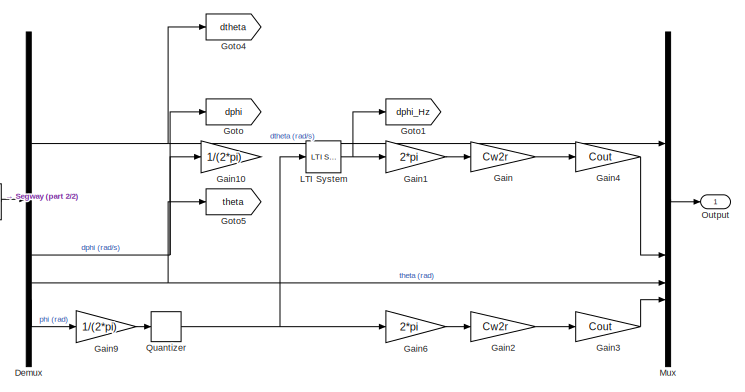
[diagram: root canvas - part 1/2, right side, full height]
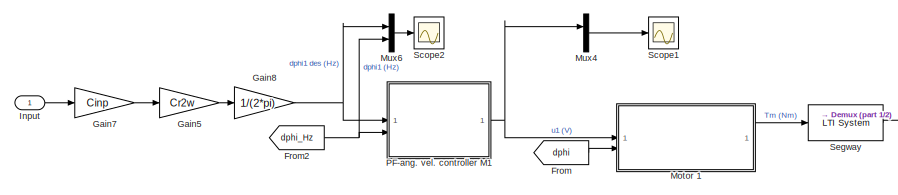
[diagram: root canvas - part 2/2, middle left region]
MODEL slx_a79e6e73ce5a
KIND model
CONFIG AbsTol = auto
CONFIG EnableMultiTasking = off
CONFIG FixedStep = auto
CONFIG MaxStep = auto
CONFIG MinStep = auto
CONFIG RelTol = 1e-3
CONFIG SampleTimeConstraint = Unconstrained
CONFIG SolverName = VariableStepAuto
CONFIG StartTime = 0.0
CONFIG StopTime = 10.0
BLOCK [Demux] Demux
BLOCK [From] From
  GotoTag = dphi
BLOCK [From] From2
  GotoTag = dphi_Hz
BLOCK [Gain] Gain
  Gain = Cw2r
  Multiplication = Matrix(K*u)
BLOCK [Gain] Gain1
  Gain = 2*pi
BLOCK [Gain] Gain10
  Gain = 1/(2*pi)
BLOCK [Gain] Gain2
  Gain = Cw2r
  Multiplication = Matrix(K*u)
BLOCK [Gain] Gain3
  Gain = Cout
  Multiplication = Matrix(K*u)
BLOCK [Gain] Gain4
  Gain = Cout
  Multiplication = Matrix(K*u)
BLOCK [Gain] Gain5
  Gain = Cr2w
  Multiplication = Matrix(K*u)
BLOCK [Gain] Gain6
  Gain = 2*pi
BLOCK [Gain] Gain7
  Gain = Cinp
  Multiplication = Matrix(K*u)
BLOCK [Gain] Gain8
  Gain = 1/(2*pi)
BLOCK [Gain] Gain9
  Gain = 1/(2*pi)
BLOCK [Goto] Goto
  GotoTag = dphi
BLOCK [Goto] Goto1
  GotoTag = dphi_Hz
BLOCK [Goto] Goto4
  GotoTag = dtheta
BLOCK [Goto] Goto5
  GotoTag = theta
BLOCK [Inport] Input
BLOCK [Reference] LTI System  REF=cstblocks/LTI System
  SourceBlock = cstblocks/LTI System
  SourceType = LTI Block
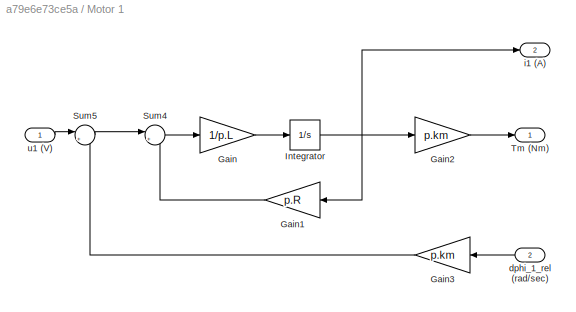
BLOCK [SubSystem] Motor 1
BLOCK [Gain] Motor 1/Gain
  Gain = 1/p.L
BLOCK [Gain] Motor 1/Gain1
  Gain = p.R
  NameLocation = top
BLOCK [Gain] Motor 1/Gain2
  Gain = p.km
BLOCK [Gain] Motor 1/Gain3
  Gain = p.km
  NameLocation = top
BLOCK [Integrator] Motor 1/Integrator
BLOCK [Sum] Motor 1/Sum4
  Inputs = |+-
BLOCK [Sum] Motor 1/Sum5
  Inputs = |+-
BLOCK [Outport] Motor 1/Tm (Nm)
BLOCK [Inport] Motor 1/dphi_1_rel (rad//sec)
  Port = 2
BLOCK [Outport] Motor 1/i1 (A)
  Port = 2
BLOCK [Inport] Motor 1/u1 (V)
BLOCK [Mux] Mux
  DisplayOption = bar
BLOCK [Mux] Mux4
  DisplayOption = bar
  Inputs = 2
BLOCK [Mux] Mux6
  DisplayOption = bar
  Inputs = 2
BLOCK [Outport] Output
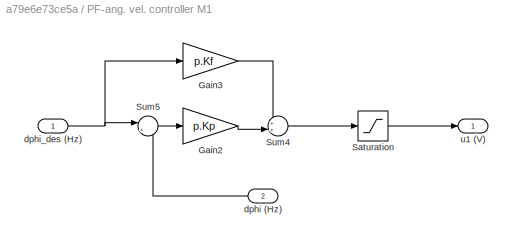
BLOCK [SubSystem] PF-ang. vel. controller M1
BLOCK [Gain] PF-ang. vel. controller M1/Gain2
  Gain = p.Kp
BLOCK [Gain] PF-ang. vel. controller M1/Gain3
  Gain = p.Kf
BLOCK [Saturate] PF-ang. vel. controller M1/Saturation
  LowerLimit = p.u_min
  UpperLimit = p.u_max
BLOCK [Sum] PF-ang. vel. controller M1/Sum4
  Inputs = ++|
BLOCK [Sum] PF-ang. vel. controller M1/Sum5
  Inputs = |+-
BLOCK [Inport] PF-ang. vel. controller M1/dphi (Hz)
  Port = 2
BLOCK [Inport] PF-ang. vel. controller M1/dphi_des (Hz)
BLOCK [Outport] PF-ang. vel. controller M1/u1 (V)
BLOCK [Quantizer] Quantizer
  QuantizationInterval = 1/p.CPR
BLOCK [Scope] Scope1
  Floating = off
  NumInputPorts = 1
  ScopeSpecificationString = Simulink.scopes.TimeScopeBlockCfg('CurrentConfiguration', extmgr.ConfigurationSet(extmgr.Configuration('Core','General UI',true),extmgr.Configuration('Core','Source UI',true),extmgr.Configuration('Sources','WiredSimulink',true,'DataLoggingVariableName','ScopeData1'),extmgr.Configuration('Visuals','Time Domain',true,'SerializedDisplays',{struct('MinYLimReal','-1.77478','MaxYLimReal','4.04996','YLab...<+1422ch>
BLOCK [Scope] Scope2
  Floating = off
  NumInputPorts = 1
  ScopeSpecificationString = Simulink.scopes.TimeScopeBlockCfg('CurrentConfiguration', extmgr.ConfigurationSet(extmgr.Configuration('Core','General UI',true),extmgr.Configuration('Core','Source UI',true),extmgr.Configuration('Sources','WiredSimulink',true),extmgr.Configuration('Visuals','Time Domain',true,'SerializedDisplays',{struct('MinYLimReal','-0.41231','MaxYLimReal','1.15693','YLabelReal','','MinYLimMag','0.00000','MaxY...<+1395ch>
BLOCK [Reference] Segway  REF=cstblocks/LTI System
  SourceBlock = cstblocks/LTI System
  SourceType = LTI Block
NET Demux:1 -> Goto4:1, Mux:1
NET Demux:2 -> Gain10:1, Goto:1
NET Demux:3 -> Goto5:1, Mux:3
LINE Demux:4 -> Gain9:1
NET From2:1 -> Mux6:2, PF-ang. vel. controller M1:2
LINE From:1 -> Motor 1:2
LINE Gain1:1 -> Gain:1
LINE Gain2:1 -> Gain3:1
LINE Gain3:1 -> Mux:4
LINE Gain4:1 -> Mux:2
LINE Gain5:1 -> Gain8:1
LINE Gain6:1 -> Gain2:1
LINE Gain7:1 -> Gain5:1
NET Gain8:1 -> Mux6:1, PF-ang. vel. controller M1:1
LINE Gain9:1 -> Quantizer:1
LINE Gain:1 -> Gain4:1
LINE Input:1 -> Gain7:1
NET LTI System:1 -> Gain1:1, Goto1:1
LINE Motor 1/Gain1:1 -> Motor 1/Sum4:2
LINE Motor 1/Gain2:1 -> Motor 1/Tm (Nm):1
LINE Motor 1/Gain3:1 -> Motor 1/Sum5:2
LINE Motor 1/Gain:1 -> Motor 1/Integrator:1
NET Motor 1/Integrator:1 -> Motor 1/Gain1:1, Motor 1/Gain2:1, Motor 1/i1 (A):1
LINE Motor 1/Sum4:1 -> Motor 1/Gain:1
LINE Motor 1/Sum5:1 -> Motor 1/Sum4:1
LINE Motor 1/dphi_1_rel (rad//sec):1 -> Motor 1/Gain3:1
LINE Motor 1/u1 (V):1 -> Motor 1/Sum5:1
LINE Motor 1:1 -> Segway:1
LINE Mux4:1 -> Scope1:1
LINE Mux6:1 -> Scope2:1
LINE Mux:1 -> Output:1
LINE PF-ang. vel. controller M1/Gain2:1 -> PF-ang. vel. controller M1/Sum4:2
LINE PF-ang. vel. controller M1/Gain3:1 -> PF-ang. vel. controller M1/Sum4:1
LINE PF-ang. vel. controller M1/Saturation:1 -> PF-ang. vel. controller M1/u1 (V):1
LINE PF-ang. vel. controller M1/Sum4:1 -> PF-ang. vel. controller M1/Saturation:1
LINE PF-ang. vel. controller M1/Sum5:1 -> PF-ang. vel. controller M1/Gain2:1
LINE PF-ang. vel. controller M1/dphi (Hz):1 -> PF-ang. vel. controller M1/Sum5:2
NET PF-ang. vel. controller M1/dphi_des (Hz):1 -> PF-ang. vel. controller M1/Gain3:1, PF-ang. vel. controller M1/Sum5:1
NET PF-ang. vel. controller M1:1 -> Motor 1:1, Mux4:1
NET Quantizer:1 -> Gain6:1, LTI System:1
LINE Segway:1 -> Demux:1
note: NET lines group one-source signal fan-out (src -> all destinations, sorted); 1:1 wires keep LINE
